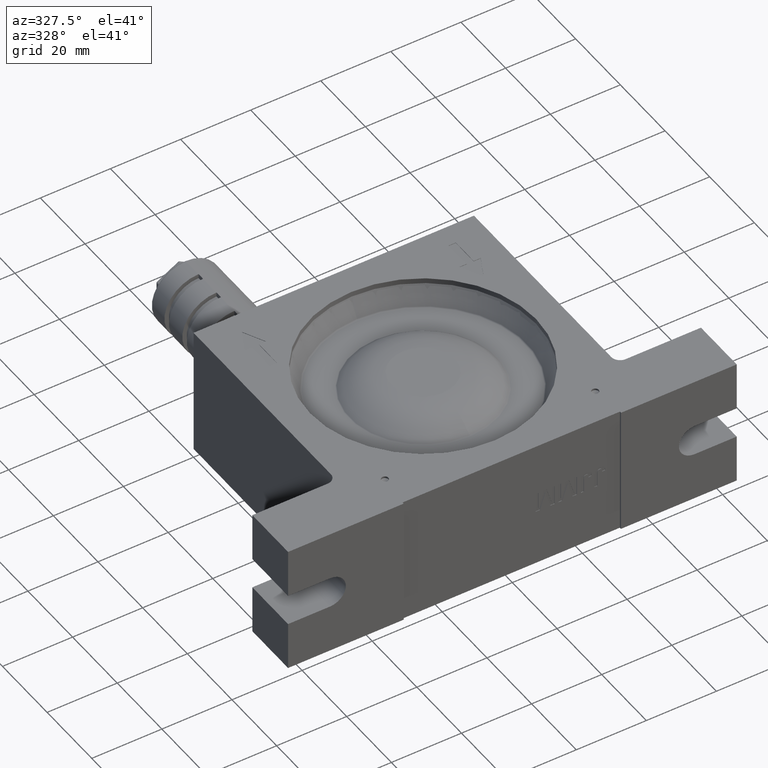
[diagram: clean part render]
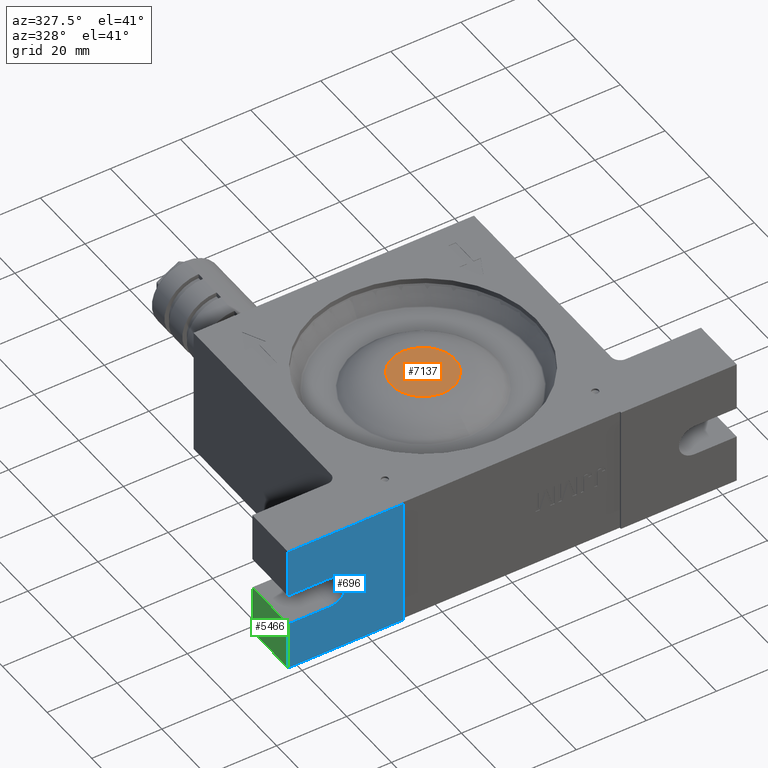
[diagram: same view with three faces highlighted in distinct colors, each labeled with its STEP entity id]
A machine part, auxiliary view with three faces highlighted in distinct colors.
Their STEP definitions:

[orange] entity #7137 — the highlighted planar face has unit normal (0, 0, 1).
#321 = AXIS2_PLACEMENT_3D ( 'NONE', #3349, #1087, #2191 ) ;
#642 = DIRECTION ( 'NONE',  ( 1.665334536937734600E-016, 1.000000000000000000, 0.0000000000000000000 ) ) ;
#1087 = DIRECTION ( 'NONE',  ( 8.602726321297810600E-018, 1.224606353822375800E-016, 1.000000000000000000 ) ) ;
#1226 = DIRECTION ( 'NONE',  ( 8.602726321297810600E-018, 1.224606353822375800E-016, 1.000000000000000000 ) ) ;
#1274 = CARTESIAN_POINT ( 'NONE',  ( 2.580817896389365400E-018, 3.673819061467395200E-017, 16.65000000000000200 ) ) ;
#1646 = PLANE ( 'NONE',  #5164 ) ;
#2191 = DIRECTION ( 'NONE',  ( 1.665334536937734600E-016, 1.000000000000000000, 0.0000000000000000000 ) ) ;
#2255 = CARTESIAN_POINT ( 'NONE',  ( 2.580817896389350300E-018, 2.478322995113260200E-030, 16.65000000000000200 ) ) ;
#2301 = EDGE_CURVE ( 'NONE', #2682, #4899, #4743, .T. ) ;
#2494 = ORIENTED_EDGE ( 'NONE', *, *, #3168, .T. ) ;
#2586 = ORIENTED_EDGE ( 'NONE', *, *, #2301, .T. ) ;
#2682 = VERTEX_POINT ( 'NONE', #4850 ) ;
#3168 = EDGE_CURVE ( 'NONE', #4899, #2682, #6081, .T. ) ;
#3349 = CARTESIAN_POINT ( 'NONE',  ( 2.580817896389365400E-018, 3.673819061467395200E-017, 16.65000000000000200 ) ) ;
#4023 = FACE_OUTER_BOUND ( 'NONE', #7070, .T. ) ;
#4743 = CIRCLE ( 'NONE', #5935, 9.000000000000000000 ) ;
#4850 = CARTESIAN_POINT ( 'NONE',  ( -4.326388073325033000E-015, -9.000000000000000000, 16.65000000000000200 ) ) ;
#4899 = VERTEX_POINT ( 'NONE', #7483 ) ;
#5164 = AXIS2_PLACEMENT_3D ( 'NONE', #2255, #6269, #6851 ) ;
#5935 = AXIS2_PLACEMENT_3D ( 'NONE', #1274, #1226, #642 ) ;
#6081 = CIRCLE ( 'NONE', #321, 9.000000000000000000 ) ;
#6269 = DIRECTION ( 'NONE',  ( 8.602726321297810600E-018, 1.224606353822375800E-016, 1.000000000000000000 ) ) ;
#6851 = DIRECTION ( 'NONE',  ( 1.665334536937734800E-016, 1.000000000000000000, -1.224606353822375800E-016 ) ) ;
#7070 = EDGE_LOOP ( 'NONE', ( #2494, #2586 ) ) ;
#7137 = ADVANCED_FACE ( 'NONE', ( #4023 ), #1646, .T. ) ;
#7483 = CARTESIAN_POINT ( 'NONE',  ( 1.501381901140350500E-015, 9.000000000000000000, 16.65000000000000200 ) ) ;

[blue] entity #696 — the highlighted planar face has unit normal (0, 1, 0).
#90 = EDGE_CURVE ( 'NONE', #755, #4722, #4511, .T. ) ;
#347 = VECTOR ( 'NONE', #2110, 1000.000000000000000 ) ;
#460 = CARTESIAN_POINT ( 'NONE',  ( -52.00000000000000000, -40.00000000000000000, -4.500000000000000000 ) ) ;
#540 = CARTESIAN_POINT ( 'NONE',  ( -64.00000000000000000, -40.00000000000000000, -4.500000000000000000 ) ) ;
#545 = ORIENTED_EDGE ( 'NONE', *, *, #3522, .F. ) ;
#572 = DIRECTION ( 'NONE',  ( -1.000000000000000000, 0.0000000000000000000, 7.228014483236690600E-016 ) ) ;
#681 = LINE ( 'NONE', #4261, #5076 ) ;
#696 = ADVANCED_FACE ( 'NONE', ( #4844 ), #5405, .F. ) ;
#755 = VERTEX_POINT ( 'NONE', #2745 ) ;
#791 = AXIS2_PLACEMENT_3D ( 'NONE', #5117, #4044, #5135 ) ;
#1086 = VECTOR ( 'NONE', #6558, 1000.000000000000000 ) ;
#1420 = CARTESIAN_POINT ( 'NONE',  ( -64.00000000000000000, -40.00000000000000000, 18.50000000000000000 ) ) ;
#1496 = LINE ( 'NONE', #2700, #7440 ) ;
#1552 = EDGE_CURVE ( 'NONE', #3086, #755, #3590, .T. ) ;
#1878 = LINE ( 'NONE', #7418, #3866 ) ;
#1884 = CARTESIAN_POINT ( 'NONE',  ( -64.00000000000000000, -40.00000000000000000, 18.50000000000000000 ) ) ;
#1980 = DIRECTION ( 'NONE',  ( 1.000000000000000000, 0.0000000000000000000, 0.0000000000000000000 ) ) ;
#2110 = DIRECTION ( 'NONE',  ( 0.0000000000000000000, 0.0000000000000000000, -1.000000000000000000 ) ) ;
#2144 = CARTESIAN_POINT ( 'NONE',  ( -64.00000000000000000, -40.00000000000000000, 18.50000000000000000 ) ) ;
#2531 = CARTESIAN_POINT ( 'NONE',  ( -64.00000000000000000, -40.00000000000000000, -18.50000000000000000 ) ) ;
#2651 = ORIENTED_EDGE ( 'NONE', *, *, #5488, .T. ) ;
#2700 = CARTESIAN_POINT ( 'NONE',  ( -64.00000000000000000, -40.00000000000000000, 4.500000000000000000 ) ) ;
#2745 = CARTESIAN_POINT ( 'NONE',  ( -64.00000000000000000, -40.00000000000000000, -18.50000000000000000 ) ) ;
#2813 = VERTEX_POINT ( 'NONE', #5208 ) ;
#2831 = VERTEX_POINT ( 'NONE', #2952 ) ;
#2952 = CARTESIAN_POINT ( 'NONE',  ( -64.00000000000000000, -40.00000000000000000, 4.500000000000000000 ) ) ;
#3020 = LINE ( 'NONE', #1884, #3298 ) ;
#3086 = VERTEX_POINT ( 'NONE', #540 ) ;
#3235 = EDGE_CURVE ( 'NONE', #2831, #6776, #1496, .T. ) ;
#3298 = VECTOR ( 'NONE', #4757, 1000.000000000000000 ) ;
#3522 = EDGE_CURVE ( 'NONE', #2813, #6194, #681, .T. ) ;
#3590 = LINE ( 'NONE', #2144, #347 ) ;
#3657 = VERTEX_POINT ( 'NONE', #460 ) ;
#3866 = VECTOR ( 'NONE', #572, 1000.000000000000000 ) ;
#3879 = DIRECTION ( 'NONE',  ( 1.000000000000000000, 0.0000000000000000000, 1.445602896647339900E-016 ) ) ;
#3915 = ORIENTED_EDGE ( 'NONE', *, *, #4446, .T. ) ;
#4044 = DIRECTION ( 'NONE',  ( 0.0000000000000000000, 1.000000000000000000, 0.0000000000000000000 ) ) ;
#4152 = EDGE_CURVE ( 'NONE', #3657, #3086, #1878, .T. ) ;
#4244 = ORIENTED_EDGE ( 'NONE', *, *, #1552, .T. ) ;
#4255 = ORIENTED_EDGE ( 'NONE', *, *, #3235, .T. ) ;
#4261 = CARTESIAN_POINT ( 'NONE',  ( -64.00000000000000000, -40.00000000000000000, 18.50000000000000000 ) ) ;
#4410 = ORIENTED_EDGE ( 'NONE', *, *, #90, .T. ) ;
#4446 = EDGE_CURVE ( 'NONE', #4722, #6194, #6097, .T. ) ;
#4511 = LINE ( 'NONE', #2531, #1086 ) ;
#4579 = AXIS2_PLACEMENT_3D ( 'NONE', #1420, #6583, #7121 ) ;
#4642 = EDGE_LOOP ( 'NONE', ( #2651, #6340, #4244, #4410, #3915, #545, #6853, #4255 ) ) ;
#4722 = VERTEX_POINT ( 'NONE', #7366 ) ;
#4723 = CARTESIAN_POINT ( 'NONE',  ( -52.00000000000000000, -40.00000000000000000, 4.500000000000000000 ) ) ;
#4757 = DIRECTION ( 'NONE',  ( 0.0000000000000000000, 0.0000000000000000000, -1.000000000000000000 ) ) ;
#4844 = FACE_OUTER_BOUND ( 'NONE', #4642, .T. ) ;
#5076 = VECTOR ( 'NONE', #1980, 1000.000000000000000 ) ;
#5117 = CARTESIAN_POINT ( 'NONE',  ( -52.00000000000000000, -40.00000000000000000, -3.673940397442060000E-015 ) ) ;
#5135 = DIRECTION ( 'NONE',  ( 0.0000000000000000000, 0.0000000000000000000, -1.000000000000000000 ) ) ;
#5205 = EDGE_CURVE ( 'NONE', #2813, #2831, #3020, .T. ) ;
#5208 = CARTESIAN_POINT ( 'NONE',  ( -64.00000000000000000, -40.00000000000000000, 18.50000000000000000 ) ) ;
#5405 = PLANE ( 'NONE',  #4579 ) ;
#5488 = EDGE_CURVE ( 'NONE', #6776, #3657, #6176, .T. ) ;
#6097 = LINE ( 'NONE', #6478, #6192 ) ;
#6176 = CIRCLE ( 'NONE', #791, 4.500000000000000000 ) ;
#6192 = VECTOR ( 'NONE', #7057, 1000.000000000000000 ) ;
#6194 = VERTEX_POINT ( 'NONE', #6791 ) ;
#6340 = ORIENTED_EDGE ( 'NONE', *, *, #4152, .T. ) ;
#6478 = CARTESIAN_POINT ( 'NONE',  ( -31.00000000000000000, -40.00000000000000000, -18.50000000000000000 ) ) ;
#6558 = DIRECTION ( 'NONE',  ( 1.000000000000000000, 0.0000000000000000000, 0.0000000000000000000 ) ) ;
#6583 = DIRECTION ( 'NONE',  ( 0.0000000000000000000, 1.000000000000000000, 0.0000000000000000000 ) ) ;
#6776 = VERTEX_POINT ( 'NONE', #4723 ) ;
#6791 = CARTESIAN_POINT ( 'NONE',  ( -31.00000000000000000, -40.00000000000000000, 18.50000000000000000 ) ) ;
#6853 = ORIENTED_EDGE ( 'NONE', *, *, #5205, .T. ) ;
#7057 = DIRECTION ( 'NONE',  ( 0.0000000000000000000, 0.0000000000000000000, 1.000000000000000000 ) ) ;
#7121 = DIRECTION ( 'NONE',  ( 0.0000000000000000000, 0.0000000000000000000, 1.000000000000000000 ) ) ;
#7366 = CARTESIAN_POINT ( 'NONE',  ( -31.00000000000000000, -40.00000000000000000, -18.50000000000000000 ) ) ;
#7418 = CARTESIAN_POINT ( 'NONE',  ( -64.00000000000000000, -40.00000000000000000, -4.500000000000000000 ) ) ;
#7440 = VECTOR ( 'NONE', #3879, 1000.000000000000000 ) ;

[green] entity #5466 — the highlighted planar face has unit normal (1, 0, 0).
#72 = DIRECTION ( 'NONE',  ( 0.0000000000000000000, -1.000000000000000000, 0.0000000000000000000 ) ) ;
#347 = VECTOR ( 'NONE', #2110, 1000.000000000000000 ) ;
#469 = DIRECTION ( 'NONE',  ( 0.0000000000000000000, 0.0000000000000000000, -1.000000000000000000 ) ) ;
#520 = CARTESIAN_POINT ( 'NONE',  ( -64.00000000000000000, -24.00000000000000000, -18.50000000000000000 ) ) ;
#540 = CARTESIAN_POINT ( 'NONE',  ( -64.00000000000000000, -40.00000000000000000, -4.500000000000000000 ) ) ;
#568 = VERTEX_POINT ( 'NONE', #6760 ) ;
#755 = VERTEX_POINT ( 'NONE', #2745 ) ;
#964 = LINE ( 'NONE', #4053, #7171 ) ;
#1392 = ORIENTED_EDGE ( 'NONE', *, *, #1552, .F. ) ;
#1531 = CARTESIAN_POINT ( 'NONE',  ( -64.00000000000000000, -40.00000000000000000, 18.50000000000000000 ) ) ;
#1552 = EDGE_CURVE ( 'NONE', #3086, #755, #3590, .T. ) ;
#1622 = DIRECTION ( 'NONE',  ( 0.0000000000000000000, 1.000000000000000000, 0.0000000000000000000 ) ) ;
#2110 = DIRECTION ( 'NONE',  ( 0.0000000000000000000, 0.0000000000000000000, -1.000000000000000000 ) ) ;
#2144 = CARTESIAN_POINT ( 'NONE',  ( -64.00000000000000000, -40.00000000000000000, 18.50000000000000000 ) ) ;
#2333 = EDGE_CURVE ( 'NONE', #2628, #568, #5367, .T. ) ;
#2628 = VERTEX_POINT ( 'NONE', #4282 ) ;
#2671 = VECTOR ( 'NONE', #1622, 1000.000000000000000 ) ;
#2745 = CARTESIAN_POINT ( 'NONE',  ( -64.00000000000000000, -40.00000000000000000, -18.50000000000000000 ) ) ;
#3086 = VERTEX_POINT ( 'NONE', #540 ) ;
#3339 = DIRECTION ( 'NONE',  ( 1.000000000000000000, 0.0000000000000000000, 0.0000000000000000000 ) ) ;
#3452 = EDGE_LOOP ( 'NONE', ( #1392, #7352, #4868, #5919 ) ) ;
#3590 = LINE ( 'NONE', #2144, #347 ) ;
#3919 = PLANE ( 'NONE',  #6731 ) ;
#4053 = CARTESIAN_POINT ( 'NONE',  ( -64.00000000000000000, -40.00000000000000000, -18.50000000000000000 ) ) ;
#4282 = CARTESIAN_POINT ( 'NONE',  ( -64.00000000000000000, -24.00000000000000000, -18.50000000000000000 ) ) ;
#4868 = ORIENTED_EDGE ( 'NONE', *, *, #2333, .F. ) ;
#4999 = FACE_OUTER_BOUND ( 'NONE', #3452, .T. ) ;
#5016 = EDGE_CURVE ( 'NONE', #2628, #755, #964, .T. ) ;
#5367 = LINE ( 'NONE', #520, #7169 ) ;
#5466 = ADVANCED_FACE ( 'NONE', ( #4999 ), #3919, .F. ) ;
#5669 = CARTESIAN_POINT ( 'NONE',  ( -64.00000000000000000, -40.00000000000000000, -4.500000000000000000 ) ) ;
#5725 = LINE ( 'NONE', #5669, #2671 ) ;
#5919 = ORIENTED_EDGE ( 'NONE', *, *, #5016, .T. ) ;
#6344 = DIRECTION ( 'NONE',  ( 0.0000000000000000000, 0.0000000000000000000, 1.000000000000000000 ) ) ;
#6731 = AXIS2_PLACEMENT_3D ( 'NONE', #1531, #3339, #469 ) ;
#6760 = CARTESIAN_POINT ( 'NONE',  ( -64.00000000000000000, -24.00000000000000000, -4.500000000000000000 ) ) ;
#7096 = EDGE_CURVE ( 'NONE', #3086, #568, #5725, .T. ) ;
#7169 = VECTOR ( 'NONE', #6344, 1000.000000000000000 ) ;
#7171 = VECTOR ( 'NONE', #72, 1000.000000000000000 ) ;
#7352 = ORIENTED_EDGE ( 'NONE', *, *, #7096, .T. ) ;